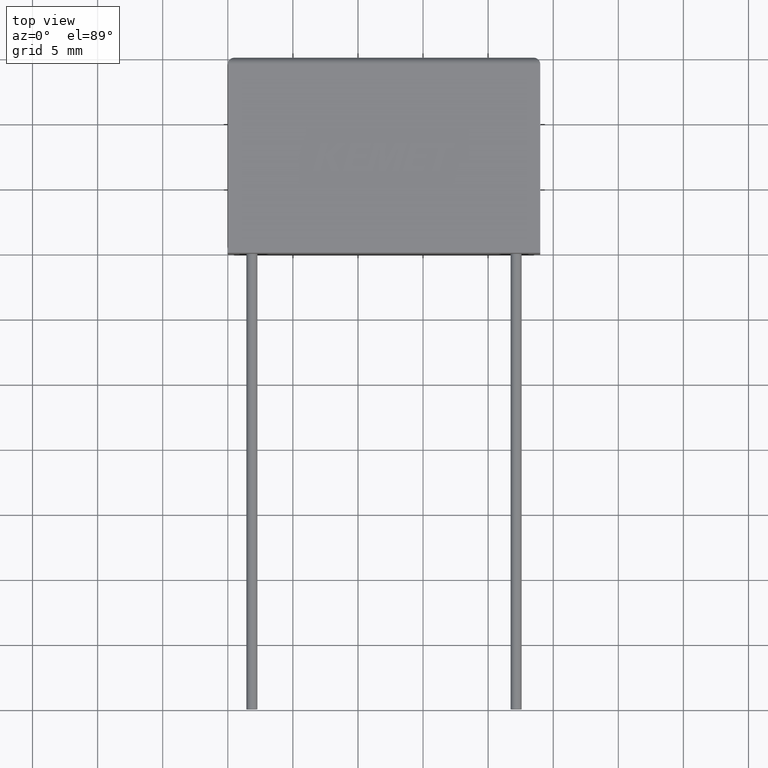
[diagram: clean part render]
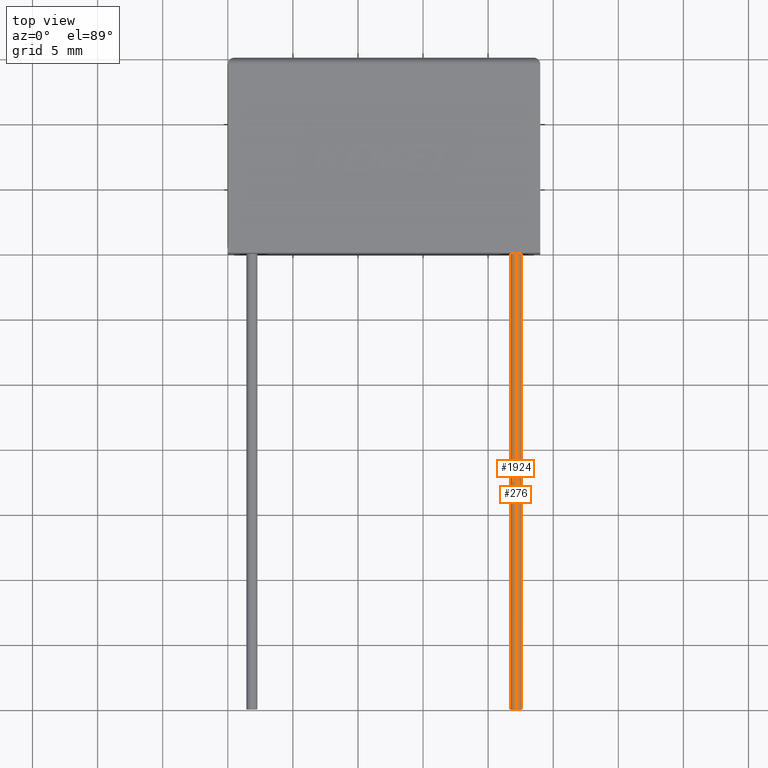
[diagram: same view with one multi-face feature highlighted, each face labeled with its STEP entity id]
A machine part, top view. The highlighted faces form ONE feature: a constant-radius fillet chain: 2 tangent blend faces with common blend radius 0.425 mm. The faces share edges in the B-rep.
Their STEP definitions:
[1] entity #276 (Cylinder):
#76 = VECTOR ( 'NONE', #1195, 1000.000000000000000 ) ;
#77 = CARTESIAN_POINT ( 'NONE',  ( 22.15000000000000200, -35.00000000000000000, 4.924999999999998900 ) ) ;
#122 = CARTESIAN_POINT ( 'NONE',  ( 22.15000000000000200, -35.00000000000000000, 4.499999999999999100 ) ) ;
#190 = FACE_OUTER_BOUND ( 'NONE', #1727, .T. ) ;
#266 = VERTEX_POINT ( 'NONE', #383 ) ;
#276 = ADVANCED_FACE ( 'NONE', ( #190 ), #558, .T. ) ;
#302 = LINE ( 'NONE', #2412, #1939 ) ;
#347 = EDGE_CURVE ( 'NONE', #982, #266, #2264, .T. ) ;
#369 = CIRCLE ( 'NONE', #2448, 0.4250000000000000400 ) ;
#379 = CARTESIAN_POINT ( 'NONE',  ( 22.15000000000000200, 0.0000000000000000000, 4.499999999999999100 ) ) ;
#383 = CARTESIAN_POINT ( 'NONE',  ( 22.15000000000000200, 0.0000000000000000000, 4.924999999999998900 ) ) ;
#423 = VERTEX_POINT ( 'NONE', #1959 ) ;
#558 = CYLINDRICAL_SURFACE ( 'NONE', #2333, 0.4250000000000000400 ) ;
#568 = VERTEX_POINT ( 'NONE', #1657 ) ;
#596 = DIRECTION ( 'NONE',  ( 0.0000000000000000000, 0.0000000000000000000, -1.000000000000000000 ) ) ;
#604 = ORIENTED_EDGE ( 'NONE', *, *, #347, .F. ) ;
#769 = EDGE_CURVE ( 'NONE', #982, #423, #369, .T. ) ;
#796 = DIRECTION ( 'NONE',  ( -0.0000000000000000000, 1.000000000000000000, -0.0000000000000000000 ) ) ;
#982 = VERTEX_POINT ( 'NONE', #1897 ) ;
#1045 = CIRCLE ( 'NONE', #2438, 0.4250000000000000400 ) ;
#1066 = ORIENTED_EDGE ( 'NONE', *, *, #769, .T. ) ;
#1070 = DIRECTION ( 'NONE',  ( 0.0000000000000000000, 0.0000000000000000000, -1.000000000000000000 ) ) ;
#1195 = DIRECTION ( 'NONE',  ( -0.0000000000000000000, 1.000000000000000000, -0.0000000000000000000 ) ) ;
#1458 = DIRECTION ( 'NONE',  ( -0.0000000000000000000, 1.000000000000000000, -0.0000000000000000000 ) ) ;
#1464 = EDGE_CURVE ( 'NONE', #266, #568, #1045, .T. ) ;
#1639 = ORIENTED_EDGE ( 'NONE', *, *, #1464, .F. ) ;
#1657 = CARTESIAN_POINT ( 'NONE',  ( 22.15000000000000200, 0.0000000000000000000, 4.074999999999998400 ) ) ;
#1727 = EDGE_LOOP ( 'NONE', ( #1066, #2099, #1639, #604 ) ) ;
#1728 = DIRECTION ( 'NONE',  ( 0.0000000000000000000, 0.0000000000000000000, 1.000000000000000000 ) ) ;
#1729 = DIRECTION ( 'NONE',  ( -0.0000000000000000000, 1.000000000000000000, -0.0000000000000000000 ) ) ;
#1732 = EDGE_CURVE ( 'NONE', #423, #568, #302, .T. ) ;
#1897 = CARTESIAN_POINT ( 'NONE',  ( 22.15000000000000200, -35.00000000000000000, 4.924999999999998900 ) ) ;
#1929 = CARTESIAN_POINT ( 'NONE',  ( 22.15000000000000200, -35.00000000000000000, 4.499999999999999100 ) ) ;
#1939 = VECTOR ( 'NONE', #1458, 1000.000000000000000 ) ;
#1959 = CARTESIAN_POINT ( 'NONE',  ( 22.15000000000000200, -35.00000000000000000, 4.074999999999998400 ) ) ;
#2017 = DIRECTION ( 'NONE',  ( -0.0000000000000000000, 1.000000000000000000, -0.0000000000000000000 ) ) ;
#2099 = ORIENTED_EDGE ( 'NONE', *, *, #1732, .T. ) ;
#2264 = LINE ( 'NONE', #77, #76 ) ;
#2333 = AXIS2_PLACEMENT_3D ( 'NONE', #1929, #796, #1728 ) ;
#2412 = CARTESIAN_POINT ( 'NONE',  ( 22.15000000000000200, -35.00000000000000000, 4.074999999999998400 ) ) ;
#2438 = AXIS2_PLACEMENT_3D ( 'NONE', #379, #1729, #596 ) ;
#2448 = AXIS2_PLACEMENT_3D ( 'NONE', #122, #2017, #1070 ) ;
[2] entity #1924 (Cylinder):
#24 = DIRECTION ( 'NONE',  ( 0.0000000000000000000, 0.0000000000000000000, -1.000000000000000000 ) ) ;
#76 = VECTOR ( 'NONE', #1195, 1000.000000000000000 ) ;
#77 = CARTESIAN_POINT ( 'NONE',  ( 22.15000000000000200, -35.00000000000000000, 4.924999999999998900 ) ) ;
#141 = AXIS2_PLACEMENT_3D ( 'NONE', #288, #293, #494 ) ;
#188 = CARTESIAN_POINT ( 'NONE',  ( 22.15000000000000200, 0.0000000000000000000, 4.499999999999999100 ) ) ;
#212 = EDGE_CURVE ( 'NONE', #568, #266, #835, .T. ) ;
#266 = VERTEX_POINT ( 'NONE', #383 ) ;
#288 = CARTESIAN_POINT ( 'NONE',  ( 22.15000000000000200, -35.00000000000000000, 4.499999999999999100 ) ) ;
#293 = DIRECTION ( 'NONE',  ( -0.0000000000000000000, 1.000000000000000000, -0.0000000000000000000 ) ) ;
#302 = LINE ( 'NONE', #2412, #1939 ) ;
#347 = EDGE_CURVE ( 'NONE', #982, #266, #2264, .T. ) ;
#356 = ORIENTED_EDGE ( 'NONE', *, *, #1732, .F. ) ;
#383 = CARTESIAN_POINT ( 'NONE',  ( 22.15000000000000200, 0.0000000000000000000, 4.924999999999998900 ) ) ;
#423 = VERTEX_POINT ( 'NONE', #1959 ) ;
#494 = DIRECTION ( 'NONE',  ( 0.0000000000000000000, 0.0000000000000000000, 1.000000000000000000 ) ) ;
#568 = VERTEX_POINT ( 'NONE', #1657 ) ;
#595 = DIRECTION ( 'NONE',  ( -0.0000000000000000000, 1.000000000000000000, -0.0000000000000000000 ) ) ;
#625 = ORIENTED_EDGE ( 'NONE', *, *, #2363, .T. ) ;
#793 = DIRECTION ( 'NONE',  ( 0.0000000000000000000, 0.0000000000000000000, -1.000000000000000000 ) ) ;
#835 = CIRCLE ( 'NONE', #1923, 0.4250000000000000400 ) ;
#857 = CYLINDRICAL_SURFACE ( 'NONE', #141, 0.4250000000000000400 ) ;
#982 = VERTEX_POINT ( 'NONE', #1897 ) ;
#1037 = FACE_OUTER_BOUND ( 'NONE', #2101, .T. ) ;
#1041 = ORIENTED_EDGE ( 'NONE', *, *, #347, .T. ) ;
#1195 = DIRECTION ( 'NONE',  ( -0.0000000000000000000, 1.000000000000000000, -0.0000000000000000000 ) ) ;
#1458 = DIRECTION ( 'NONE',  ( -0.0000000000000000000, 1.000000000000000000, -0.0000000000000000000 ) ) ;
#1591 = CIRCLE ( 'NONE', #1739, 0.4250000000000000400 ) ;
#1657 = CARTESIAN_POINT ( 'NONE',  ( 22.15000000000000200, 0.0000000000000000000, 4.074999999999998400 ) ) ;
#1711 = ORIENTED_EDGE ( 'NONE', *, *, #212, .F. ) ;
#1732 = EDGE_CURVE ( 'NONE', #423, #568, #302, .T. ) ;
#1739 = AXIS2_PLACEMENT_3D ( 'NONE', #2169, #1931, #793 ) ;
#1897 = CARTESIAN_POINT ( 'NONE',  ( 22.15000000000000200, -35.00000000000000000, 4.924999999999998900 ) ) ;
#1923 = AXIS2_PLACEMENT_3D ( 'NONE', #188, #595, #24 ) ;
#1924 = ADVANCED_FACE ( 'NONE', ( #1037 ), #857, .T. ) ;
#1931 = DIRECTION ( 'NONE',  ( -0.0000000000000000000, 1.000000000000000000, -0.0000000000000000000 ) ) ;
#1939 = VECTOR ( 'NONE', #1458, 1000.000000000000000 ) ;
#1959 = CARTESIAN_POINT ( 'NONE',  ( 22.15000000000000200, -35.00000000000000000, 4.074999999999998400 ) ) ;
#2101 = EDGE_LOOP ( 'NONE', ( #356, #625, #1041, #1711 ) ) ;
#2169 = CARTESIAN_POINT ( 'NONE',  ( 22.15000000000000200, -35.00000000000000000, 4.499999999999999100 ) ) ;
#2264 = LINE ( 'NONE', #77, #76 ) ;
#2363 = EDGE_CURVE ( 'NONE', #423, #982, #1591, .T. ) ;
#2412 = CARTESIAN_POINT ( 'NONE',  ( 22.15000000000000200, -35.00000000000000000, 4.074999999999998400 ) ) ;